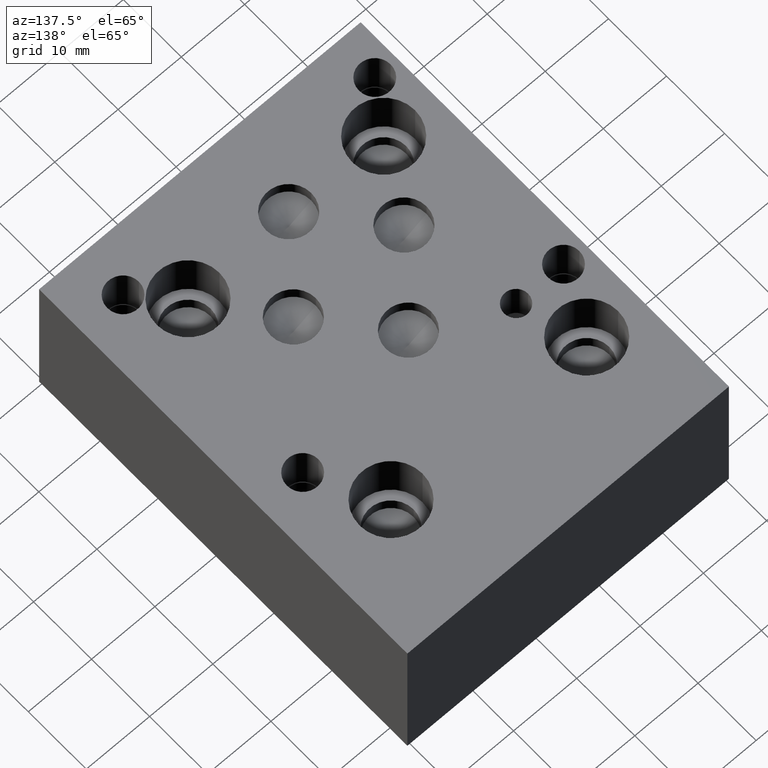
[diagram: clean part render]
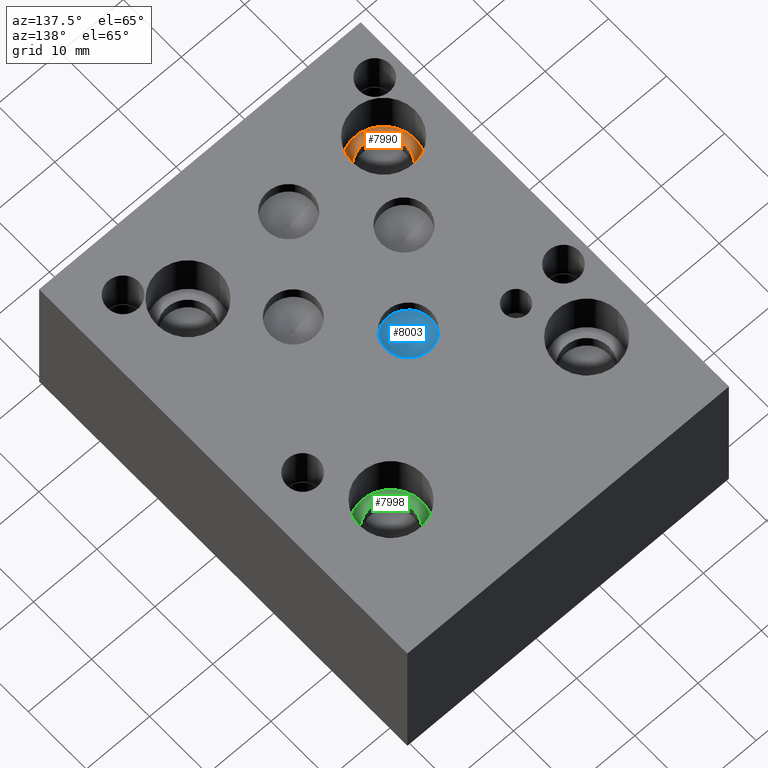
[diagram: same view with three faces highlighted in distinct colors, each labeled with its STEP entity id]
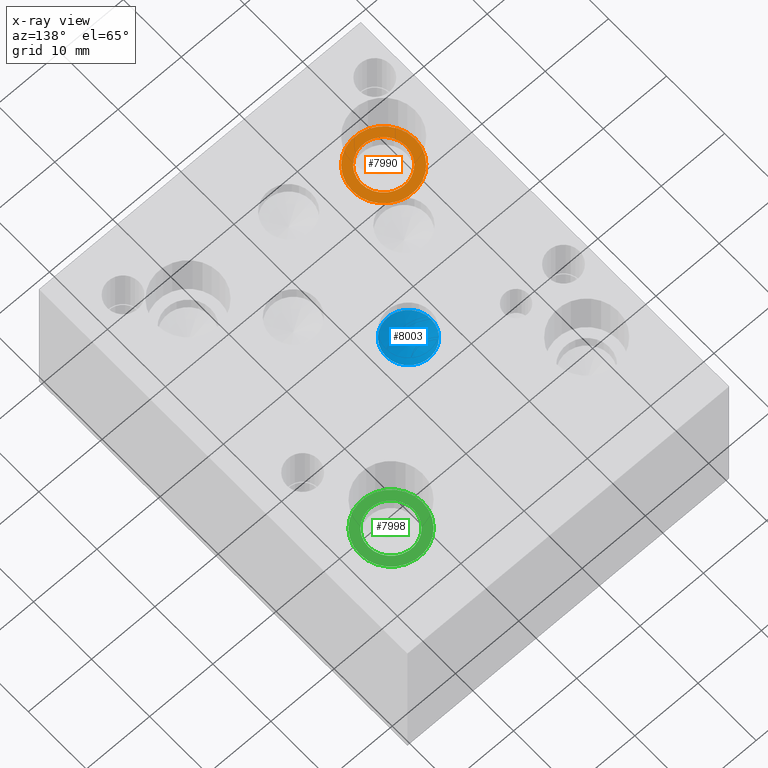
[diagram: x-ray of the same camera — body ghosted, the three highlighted faces saturated]
A machine part, auxiliary view with three faces highlighted in distinct colors.
The next image is the same camera in x-ray (body ghosted, the three faces saturated) — at least one of them is partly hidden behind the body in this view.
Their STEP definitions:

[orange] entity #7990 — the highlighted planar face has unit normal (0, 0, 1).
#98=CIRCLE('',#8382,4.9657);
#99=CIRCLE('',#8383,4.9657);
#100=CIRCLE('',#8384,3.5687);
#246=FACE_BOUND('',#1350,.T.);
#909=FACE_OUTER_BOUND('',#1349,.T.);
#1349=EDGE_LOOP('',(#6795,#6796));
#1350=EDGE_LOOP('',(#6797));
#3671=VERTEX_POINT('',#13380);
#3672=VERTEX_POINT('',#13381);
#3673=VERTEX_POINT('',#13384);
#4741=EDGE_CURVE('',#3671,#3672,#98,.T.);
#4742=EDGE_CURVE('',#3672,#3671,#99,.T.);
#4743=EDGE_CURVE('',#3673,#3673,#100,.T.);
#6795=ORIENTED_EDGE('',*,*,#4741,.T.);
#6796=ORIENTED_EDGE('',*,*,#4742,.T.);
#6797=ORIENTED_EDGE('',*,*,#4743,.F.);
#7301=PLANE('',#8381);
#7990=ADVANCED_FACE('',(#909,#246),#7301,.T.);
#8381=AXIS2_PLACEMENT_3D('',#13379,#9908,#9909);
#8382=AXIS2_PLACEMENT_3D('',#13382,#9910,#9911);
#8383=AXIS2_PLACEMENT_3D('',#13383,#9912,#9913);
#8384=AXIS2_PLACEMENT_3D('',#13385,#9914,#9915);
#9908=DIRECTION('center_axis',(0.,0.,1.));
#9909=DIRECTION('ref_axis',(1.,0.,0.));
#9910=DIRECTION('center_axis',(0.,0.,1.));
#9911=DIRECTION('ref_axis',(1.,0.,0.));
#9912=DIRECTION('center_axis',(0.,0.,1.));
#9913=DIRECTION('ref_axis',(1.,0.,0.));
#9914=DIRECTION('center_axis',(0.,0.,1.));
#9915=DIRECTION('ref_axis',(1.,0.,0.));
#13379=CARTESIAN_POINT('Origin',(7.9248,12.6238,17.526));
#13380=CARTESIAN_POINT('',(12.8905,12.6238,17.526));
#13381=CARTESIAN_POINT('',(2.9591,12.6238,17.526));
#13382=CARTESIAN_POINT('Origin',(7.9248,12.6238,17.526));
#13383=CARTESIAN_POINT('Origin',(7.9248,12.6238,17.526));
#13384=CARTESIAN_POINT('',(4.3561,12.6238,17.526));
#13385=CARTESIAN_POINT('Origin',(7.9248,12.6238,17.526));

[blue] entity #8003 — the highlighted conical surface has half-angle 60 deg.
#29=CONICAL_SURFACE('',#8417,1.78435,1.0471975511966);
#121=CIRCLE('',#8418,3.5687);
#122=CIRCLE('',#8419,3.5687);
#922=FACE_OUTER_BOUND('',#1365,.T.);
#1365=EDGE_LOOP('',(#6855,#6856,#6857,#6858));
#2183=LINE('',#13456,#2968);
#2968=VECTOR('',#9994,1.78435);
#3697=VERTEX_POINT('',#13452);
#3698=VERTEX_POINT('',#13453);
#3699=VERTEX_POINT('',#13455);
#4774=EDGE_CURVE('',#3697,#3698,#121,.T.);
#4775=EDGE_CURVE('',#3698,#3699,#2183,.T.);
#4776=EDGE_CURVE('',#3698,#3697,#122,.T.);
#6855=ORIENTED_EDGE('',*,*,#4774,.T.);
#6856=ORIENTED_EDGE('',*,*,#4775,.T.);
#6857=ORIENTED_EDGE('',*,*,#4775,.F.);
#6858=ORIENTED_EDGE('',*,*,#4776,.T.);
#8003=ADVANCED_FACE('',(#922),#29,.F.);
#8417=AXIS2_PLACEMENT_3D('',#13451,#9990,#9991);
#8418=AXIS2_PLACEMENT_3D('',#13454,#9992,#9993);
#8419=AXIS2_PLACEMENT_3D('',#13457,#9995,#9996);
#9990=DIRECTION('center_axis',(0.,0.,1.));
#9991=DIRECTION('ref_axis',(1.,0.,0.));
#9992=DIRECTION('center_axis',(0.,0.,1.));
#9993=DIRECTION('ref_axis',(1.,0.,0.));
#9994=DIRECTION('',(0.866025403784439,1.06057523872491E-16,-0.5));
#9995=DIRECTION('center_axis',(0.,0.,1.));
#9996=DIRECTION('ref_axis',(1.,0.,0.));
#13451=CARTESIAN_POINT('Origin',(22.6314,32.9438,22.3094150471715));
#13452=CARTESIAN_POINT('',(26.2001,32.9438,23.33961));
#13453=CARTESIAN_POINT('',(19.0627,32.9438,23.33961));
#13454=CARTESIAN_POINT('Origin',(22.6314,32.9438,23.33961));
#13455=CARTESIAN_POINT('',(22.6314,32.9438,21.279220094343));
#13456=CARTESIAN_POINT('',(20.84705,32.9438,22.3094150471715));
#13457=CARTESIAN_POINT('Origin',(22.6314,32.9438,23.33961));

[green] entity #7998 — the highlighted planar face has unit normal (0, 0, 1).
#112=CIRCLE('',#8404,4.9657);
#113=CIRCLE('',#8405,4.9657);
#114=CIRCLE('',#8406,3.5687);
#248=FACE_BOUND('',#1360,.T.);
#917=FACE_OUTER_BOUND('',#1359,.T.);
#1359=EDGE_LOOP('',(#6831,#6832));
#1360=EDGE_LOOP('',(#6833));
#3687=VERTEX_POINT('',#13424);
#3688=VERTEX_POINT('',#13425);
#3689=VERTEX_POINT('',#13428);
#4761=EDGE_CURVE('',#3687,#3688,#112,.T.);
#4762=EDGE_CURVE('',#3688,#3687,#113,.T.);
#4763=EDGE_CURVE('',#3689,#3689,#114,.T.);
#6831=ORIENTED_EDGE('',*,*,#4761,.T.);
#6832=ORIENTED_EDGE('',*,*,#4762,.T.);
#6833=ORIENTED_EDGE('',*,*,#4763,.F.);
#7303=PLANE('',#8403);
#7998=ADVANCED_FACE('',(#917,#248),#7303,.T.);
#8403=AXIS2_PLACEMENT_3D('',#13423,#9958,#9959);
#8404=AXIS2_PLACEMENT_3D('',#13426,#9960,#9961);
#8405=AXIS2_PLACEMENT_3D('',#13427,#9962,#9963);
#8406=AXIS2_PLACEMENT_3D('',#13429,#9964,#9965);
#9958=DIRECTION('center_axis',(0.,0.,1.));
#9959=DIRECTION('ref_axis',(1.,0.,0.));
#9960=DIRECTION('center_axis',(0.,0.,1.));
#9961=DIRECTION('ref_axis',(1.,0.,0.));
#9962=DIRECTION('center_axis',(0.,0.,1.));
#9963=DIRECTION('ref_axis',(1.,0.,0.));
#9964=DIRECTION('center_axis',(0.,0.,1.));
#9965=DIRECTION('ref_axis',(1.,0.,0.));
#13423=CARTESIAN_POINT('Origin',(38.8366,47.625,17.526));
#13424=CARTESIAN_POINT('',(43.8023,47.625,17.526));
#13425=CARTESIAN_POINT('',(33.8709,47.625,17.526));
#13426=CARTESIAN_POINT('Origin',(38.8366,47.625,17.526));
#13427=CARTESIAN_POINT('Origin',(38.8366,47.625,17.526));
#13428=CARTESIAN_POINT('',(35.2679,47.625,17.526));
#13429=CARTESIAN_POINT('Origin',(38.8366,47.625,17.526));